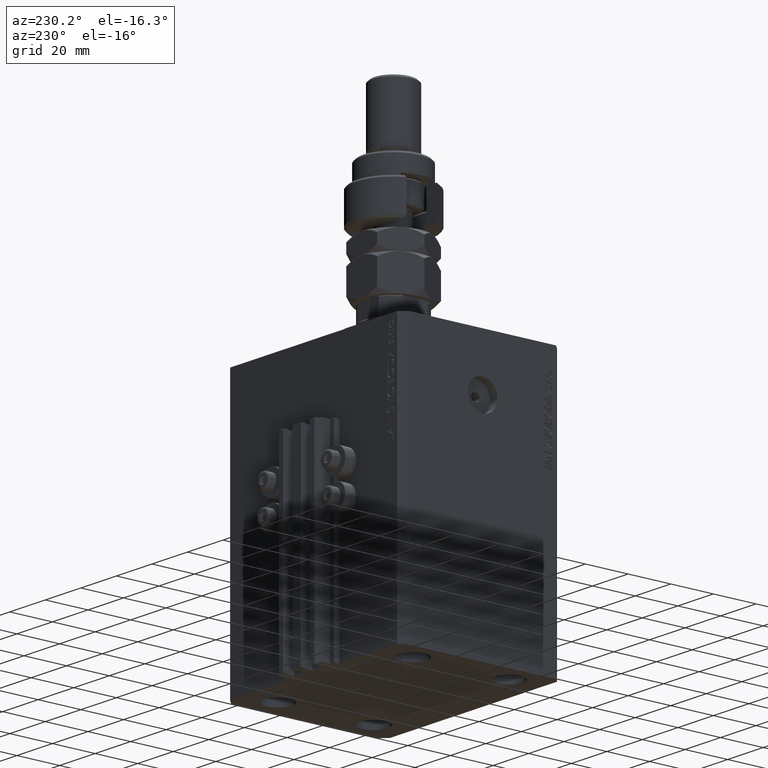
[diagram: clean part render]
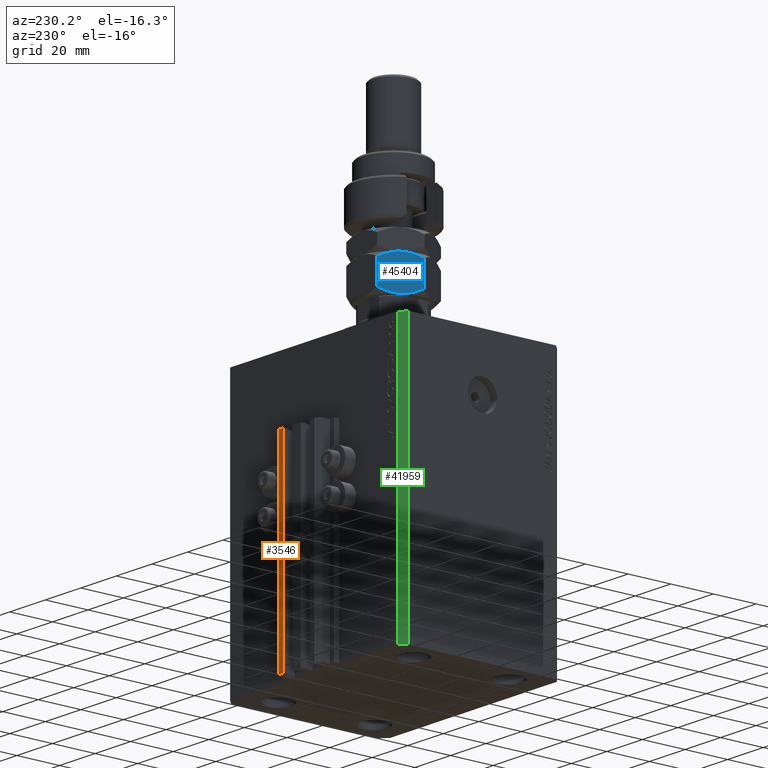
[diagram: same view with three faces highlighted in distinct colors, each labeled with its STEP entity id]
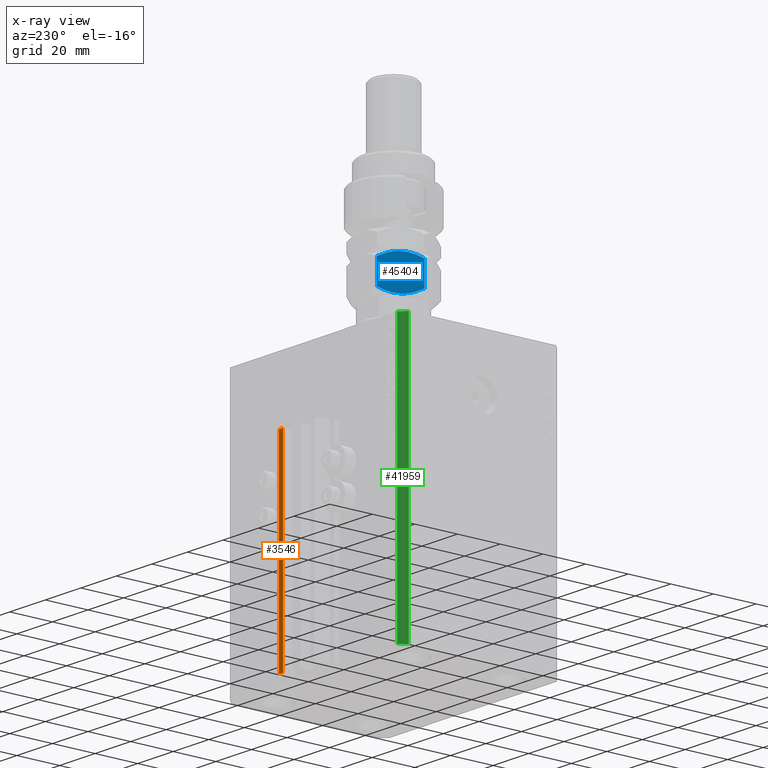
[diagram: x-ray of the same camera — body ghosted, the three highlighted faces saturated]
A machine part, auxiliary view with three faces highlighted in distinct colors.
The next image is the same camera in x-ray (body ghosted, the three faces saturated) — at least one of them is partly hidden behind the body in this view.
Their STEP definitions:

[orange] entity #3546 — the highlighted planar face has unit normal (0, 1, 0).
#199 = EDGE_CURVE ( 'NONE', #29269, #4705, #7111, .T. ) ;
#1094 = DIRECTION ( 'NONE',  ( -1.000000000000000000, 0.000000000000000000, 0.000000000000000000 ) ) ;
#2198 = EDGE_CURVE ( 'NONE', #33380, #13704, #33903, .T. ) ;
#3546 = ADVANCED_FACE ( 'NONE', ( #30025 ), #6178, .T. ) ;
#4067 = DIRECTION ( 'NONE',  ( 0.000000000000000000, 0.000000000000000000, 1.000000000000000000 ) ) ;
#4705 = VERTEX_POINT ( 'NONE', #12259 ) ;
#4977 = CARTESIAN_POINT ( 'NONE',  ( 7.649999999999998579, 45.50000000000002842, -125.0000000000000000 ) ) ;
#5063 = CARTESIAN_POINT ( 'NONE',  ( 9.999999999999998224, 45.50000000000002842, -125.0000000000000000 ) ) ;
#6178 = PLANE ( 'NONE',  #50019 ) ;
#7111 = LINE ( 'NONE', #11175, #33729 ) ;
#9171 = CARTESIAN_POINT ( 'NONE',  ( 9.999999999999998224, 45.50000000000002842, -33.00000000000000000 ) ) ;
#9740 = CARTESIAN_POINT ( 'NONE',  ( 9.999999999999998224, 45.50000000000002842, -125.0000000000000000 ) ) ;
#9843 = CARTESIAN_POINT ( 'NONE',  ( 9.999999999999998224, 45.50000000000002842, -125.0000000000000000 ) ) ;
#10346 = DIRECTION ( 'NONE',  ( 0.000000000000000000, 0.000000000000000000, 1.000000000000000000 ) ) ;
#11175 = CARTESIAN_POINT ( 'NONE',  ( 7.649999999999998579, 45.50000000000002842, -125.0000000000000000 ) ) ;
#12229 = LINE ( 'NONE', #9171, #47977 ) ;
#12259 = CARTESIAN_POINT ( 'NONE',  ( 7.649999999999998579, 45.50000000000002842, -33.00000000000000000 ) ) ;
#13704 = VERTEX_POINT ( 'NONE', #19947 ) ;
#19947 = CARTESIAN_POINT ( 'NONE',  ( 9.999999999999998224, 45.50000000000002842, -33.00000000000000000 ) ) ;
#23896 = EDGE_LOOP ( 'NONE', ( #40484, #36739, #34579, #31643 ) ) ;
#24831 = CARTESIAN_POINT ( 'NONE',  ( 9.999999999999998224, 45.50000000000002842, -125.0000000000000000 ) ) ;
#25212 = DIRECTION ( 'NONE',  ( 0.000000000000000000, 1.000000000000000000, -0.000000000000000000 ) ) ;
#26558 = VECTOR ( 'NONE', #10346, 1000.000000000000000 ) ;
#27113 = EDGE_CURVE ( 'NONE', #33380, #29269, #40008, .T. ) ;
#29269 = VERTEX_POINT ( 'NONE', #4977 ) ;
#30025 = FACE_OUTER_BOUND ( 'NONE', #23896, .T. ) ;
#30510 = DIRECTION ( 'NONE',  ( 0.000000000000000000, 0.000000000000000000, 1.000000000000000000 ) ) ;
#31643 = ORIENTED_EDGE ( 'NONE', *, *, #199, .T. ) ;
#33380 = VERTEX_POINT ( 'NONE', #24831 ) ;
#33729 = VECTOR ( 'NONE', #4067, 1000.000000000000000 ) ;
#33903 = LINE ( 'NONE', #9843, #26558 ) ;
#34579 = ORIENTED_EDGE ( 'NONE', *, *, #27113, .T. ) ;
#36739 = ORIENTED_EDGE ( 'NONE', *, *, #2198, .F. ) ;
#38556 = EDGE_CURVE ( 'NONE', #13704, #4705, #12229, .T. ) ;
#40008 = LINE ( 'NONE', #5063, #45940 ) ;
#40484 = ORIENTED_EDGE ( 'NONE', *, *, #38556, .F. ) ;
#45940 = VECTOR ( 'NONE', #47375, 1000.000000000000000 ) ;
#47375 = DIRECTION ( 'NONE',  ( -1.000000000000000000, 0.000000000000000000, 0.000000000000000000 ) ) ;
#47977 = VECTOR ( 'NONE', #1094, 1000.000000000000000 ) ;
#50019 = AXIS2_PLACEMENT_3D ( 'NONE', #9740, #25212, #30510 ) ;

[blue] entity #45404 — the highlighted planar face has unit normal (0.866, -0.5, 0).
#2 = EDGE_LOOP ( 'NONE', ( #35571, #49515, #39407, #36327, #27178, #3613 ) ) ;
#179 = B_SPLINE_CURVE_WITH_KNOTS ( 'NONE', 3,
 ( #21036, #40009, #1521, #12905, #5300, #32933, #20538, #36215, #28140, #48365, #13660, #16971 ),
 .UNSPECIFIED., .F., .F.,
 ( 4, 2, 2, 2, 2, 4 ),
 ( 0.03291042869972461704, 0.03403908204310903546, 0.03516773538649344694, 0.03742504207326227683, 0.03968234876003110673, 0.04193965544679993662 ),
 .UNSPECIFIED. ) ;
#347 = CARTESIAN_POINT ( 'NONE',  ( -14.99999999999999645, -3.004629197474316485E-15, 16.00000000000000000 ) ) ;
#1031 = CARTESIAN_POINT ( 'NONE',  ( -14.99999999999999467, -5.890999289811420958, 14.89758491968458820 ) ) ;
#1041 = EDGE_CURVE ( 'NONE', #3551, #41887, #15778, .T. ) ;
#1084 = CARTESIAN_POINT ( 'NONE',  ( -14.99999999999999645, -3.004629197474316485E-15, 16.00000000000000000 ) ) ;
#1159 = VERTEX_POINT ( 'NONE', #21293 ) ;
#1521 = CARTESIAN_POINT ( 'NONE',  ( -14.99999999999999822, 0.7629267201675393739, 0.01468466084192471960 ) ) ;
#1752 = CARTESIAN_POINT ( 'NONE',  ( -15.00000000000000000, 8.660254037844392627, 13.67949192431123429 ) ) ;
#1835 = CARTESIAN_POINT ( 'NONE',  ( -15.00000000000000000, 3.008020699068715054, 15.76423971609371222 ) ) ;
#3551 = VERTEX_POINT ( 'NONE', #347 ) ;
#3613 = ORIENTED_EDGE ( 'NONE', *, *, #22316, .F. ) ;
#4963 = LINE ( 'NONE', #28780, #23988 ) ;
#5124 = CARTESIAN_POINT ( 'NONE',  ( -15.00000000000000178, 7.301344312447437979, 14.32986304731390526 ) ) ;
#5300 = CARTESIAN_POINT ( 'NONE',  ( -15.00000000000000000, 1.890862710942016633, 0.1142538058331583339 ) ) ;
#5553 = CARTESIAN_POINT ( 'NONE',  ( -14.99999999999999645, -3.735400403320779272, 15.55737490054933936 ) ) ;
#6117 = CARTESIAN_POINT ( 'NONE',  ( -15.00000000000000000, 5.176035048062466615, 15.14719616142215308 ) ) ;
#6285 = AXIS2_PLACEMENT_3D ( 'NONE', #45383, #42310, #7604 ) ;
#7363 = FACE_OUTER_BOUND ( 'NONE', #2, .T. ) ;
#7604 = DIRECTION ( 'NONE',  ( -2.003086131649544964E-16, 1.000000000000000000, 0.000000000000000000 ) ) ;
#8380 = VERTEX_POINT ( 'NONE', #16132 ) ;
#8864 = CARTESIAN_POINT ( 'NONE',  ( -15.00000000000000000, -0.7629267201675442589, 15.98531533915807579 ) ) ;
#12905 = CARTESIAN_POINT ( 'NONE',  ( -15.00000000000000178, 1.516896874073655255, 0.07181722323989069012 ) ) ;
#13502 = EDGE_CURVE ( 'NONE', #29437, #8380, #25985, .T. ) ;
#13660 = CARTESIAN_POINT ( 'NONE',  ( -14.99999999999999645, 7.987879721624096874, 1.984320917578621835 ) ) ;
#15778 = B_SPLINE_CURVE_WITH_KNOTS ( 'NONE', 3,
 ( #47379, #40262, #8864, #39524, #48118, #17226, #5553, #47622, #1031, #31688, #20297, #43817 ),
 .UNSPECIFIED., .F., .F.,
 ( 4, 2, 2, 2, 2, 4 ),
 ( 0.03291042869972462398, 0.03403908204310903546, 0.03516773538649344694, 0.03742504207326226989, 0.03968234876003109979, 0.04193965544679992274 ),
 .UNSPECIFIED. ) ;
#16132 = CARTESIAN_POINT ( 'NONE',  ( -15.00000000000000000, -3.004629197474317274E-15, 0.000000000000000000 ) ) ;
#16170 = CARTESIAN_POINT ( 'NONE',  ( -15.00000000000000000, 8.660254037844392627, 16.00000000000000000 ) ) ;
#16971 = CARTESIAN_POINT ( 'NONE',  ( -15.00000000000000000, 8.660254037844394404, 2.320508075688769711 ) ) ;
#17226 = CARTESIAN_POINT ( 'NONE',  ( -14.99999999999999645, -3.004330627448763114, 15.71971113554880972 ) ) ;
#20297 = CARTESIAN_POINT ( 'NONE',  ( -14.99999999999999822, -7.987879721624087992, 14.01567908242139282 ) ) ;
#20538 = CARTESIAN_POINT ( 'NONE',  ( -15.00000000000000000, 3.735400403320778828, 0.4426250994506696901 ) ) ;
#21036 = CARTESIAN_POINT ( 'NONE',  ( -15.00000000000000000, -3.004629197474317274E-15, 0.000000000000000000 ) ) ;
#21293 = CARTESIAN_POINT ( 'NONE',  ( -15.00000000000000000, 8.660254037844394404, 2.320508075688769711 ) ) ;
#22007 = EDGE_CURVE ( 'NONE', #41174, #3551, #39458, .T. ) ;
#22018 = CARTESIAN_POINT ( 'NONE',  ( -14.99999999999999645, -7.987590979791842294, 1.984176546662486329 ) ) ;
#22316 = EDGE_CURVE ( 'NONE', #8380, #1159, #179, .T. ) ;
#22705 = CARTESIAN_POINT ( 'NONE',  ( -14.99999999999999645, -8.660254037844389075, 2.320508075688762606 ) ) ;
#22833 = PLANE ( 'NONE',  #6285 ) ;
#23725 = EDGE_CURVE ( 'NONE', #41174, #1159, #35422, .T. ) ;
#23988 = VECTOR ( 'NONE', #39911, 1000.000000000000000 ) ;
#24963 = EDGE_CURVE ( 'NONE', #41887, #29437, #4963, .T. ) ;
#25401 = CARTESIAN_POINT ( 'NONE',  ( -14.99999999999999822, 5.891877557735400117, 14.89726549906047381 ) ) ;
#25985 = B_SPLINE_CURVE_WITH_KNOTS ( 'NONE', 3,
 ( #49346, #22018, #33899, #48592, #37701, #36951, #33406, #37204 ),
 .UNSPECIFIED., .F., .F.,
 ( 4, 2, 2, 4 ),
 ( 0.02387628527307378290, 0.02613482112973649144, 0.02839335698639919997, 0.03291042869972461704 ),
 .UNSPECIFIED. ) ;
#27178 = ORIENTED_EDGE ( 'NONE', *, *, #23725, .T. ) ;
#28140 = CARTESIAN_POINT ( 'NONE',  ( -14.99999999999999822, 5.890999289811424511, 1.102415080315420015 ) ) ;
#28780 = CARTESIAN_POINT ( 'NONE',  ( -14.99999999999999645, -8.660254037844389075, 16.00000000000000000 ) ) ;
#29437 = VERTEX_POINT ( 'NONE', #22705 ) ;
#31688 = CARTESIAN_POINT ( 'NONE',  ( -14.99999999999999645, -7.300329060372325429, 14.33030584635917393 ) ) ;
#32933 = CARTESIAN_POINT ( 'NONE',  ( -15.00000000000000000, 3.004330627448767110, 0.2802888644511979388 ) ) ;
#32996 = CARTESIAN_POINT ( 'NONE',  ( -15.00000000000000000, 1.527574731641582639, 16.00000000000000711 ) ) ;
#33406 = CARTESIAN_POINT ( 'NONE',  ( -15.00000000000000355, -1.527574731641586192, -3.659182332138578254E-15 ) ) ;
#33899 = CARTESIAN_POINT ( 'NONE',  ( -14.99999999999999645, -7.301344312447434426, 1.670136952686098741 ) ) ;
#35422 = LINE ( 'NONE', #16170, #41768 ) ;
#35571 = ORIENTED_EDGE ( 'NONE', *, *, #13502, .F. ) ;
#36215 = CARTESIAN_POINT ( 'NONE',  ( -15.00000000000000000, 5.178726290334382476, 0.8537269996444443176 ) ) ;
#36327 = ORIENTED_EDGE ( 'NONE', *, *, #22007, .F. ) ;
#36537 = CARTESIAN_POINT ( 'NONE',  ( -15.00000000000000000, 7.987590979791845847, 14.01582345333751789 ) ) ;
#36951 = CARTESIAN_POINT ( 'NONE',  ( -14.99999999999999645, -3.008020699068712389, 0.2357602839062925004 ) ) ;
#37204 = CARTESIAN_POINT ( 'NONE',  ( -15.00000000000000000, -3.004629197474317274E-15, 0.000000000000000000 ) ) ;
#37701 = CARTESIAN_POINT ( 'NONE',  ( -14.99999999999999467, -5.176035048062463062, 0.8528038385778453634 ) ) ;
#37774 = CARTESIAN_POINT ( 'NONE',  ( -14.99999999999999645, -8.660254037844389075, 13.67949192431124139 ) ) ;
#39407 = ORIENTED_EDGE ( 'NONE', *, *, #1041, .F. ) ;
#39458 = B_SPLINE_CURVE_WITH_KNOTS ( 'NONE', 3,
 ( #47673, #36537, #5124, #25401, #6117, #1835, #32996, #1084 ),
 .UNSPECIFIED., .F., .F.,
 ( 4, 2, 2, 4 ),
 ( 0.02387628527307378290, 0.02613482112973649490, 0.02839335698639920344, 0.03291042869972462398 ),
 .UNSPECIFIED. ) ;
#39524 = CARTESIAN_POINT ( 'NONE',  ( -14.99999999999999822, -1.516896874073658807, 15.92818277676011007 ) ) ;
#39911 = DIRECTION ( 'NONE',  ( -0.000000000000000000, -0.000000000000000000, -1.000000000000000000 ) ) ;
#40009 = CARTESIAN_POINT ( 'NONE',  ( -14.99999999999999822, 0.3816858437404692661, -3.491469808582225998E-15 ) ) ;
#40262 = CARTESIAN_POINT ( 'NONE',  ( -15.00000000000000178, -0.3816858437404726523, 16.00000000000001066 ) ) ;
#41174 = VERTEX_POINT ( 'NONE', #1752 ) ;
#41768 = VECTOR ( 'NONE', #47327, 1000.000000000000000 ) ;
#41887 = VERTEX_POINT ( 'NONE', #37774 ) ;
#42310 = DIRECTION ( 'NONE',  ( 1.000000000000000000, 2.003086131649544964E-16, -0.000000000000000000 ) ) ;
#43817 = CARTESIAN_POINT ( 'NONE',  ( -14.99999999999999645, -8.660254037844389075, 13.67949192431124139 ) ) ;
#45383 = CARTESIAN_POINT ( 'NONE',  ( -15.00000000000000000, 8.660254037844392627, 16.00000000000000000 ) ) ;
#45404 = ADVANCED_FACE ( 'NONE', ( #7363 ), #22833, .F. ) ;
#47327 = DIRECTION ( 'NONE',  ( -0.000000000000000000, -0.000000000000000000, -1.000000000000000000 ) ) ;
#47379 = CARTESIAN_POINT ( 'NONE',  ( -14.99999999999999645, -3.004629197474316485E-15, 16.00000000000000000 ) ) ;
#47622 = CARTESIAN_POINT ( 'NONE',  ( -14.99999999999999822, -5.178726290334378035, 15.14627300035556345 ) ) ;
#47673 = CARTESIAN_POINT ( 'NONE',  ( -15.00000000000000000, 8.660254037844392627, 13.67949192431123429 ) ) ;
#48118 = CARTESIAN_POINT ( 'NONE',  ( -14.99999999999999822, -1.890862710942014857, 15.88574619416684541 ) ) ;
#48365 = CARTESIAN_POINT ( 'NONE',  ( -14.99999999999999822, 7.300329060372334311, 1.669694153640834955 ) ) ;
#48592 = CARTESIAN_POINT ( 'NONE',  ( -14.99999999999999112, -5.891877557735397453, 1.102734500939527518 ) ) ;
#49346 = CARTESIAN_POINT ( 'NONE',  ( -14.99999999999999645, -8.660254037844389075, 2.320508075688762606 ) ) ;
#49515 = ORIENTED_EDGE ( 'NONE', *, *, #24963, .F. ) ;

[green] entity #41959 — the highlighted planar face has unit normal (-0.7071, 0.7071, 0).
#1329 = DIRECTION ( 'NONE',  ( 0.000000000000000000, 0.000000000000000000, 1.000000000000000000 ) ) ;
#1987 = EDGE_CURVE ( 'NONE', #47694, #2439, #45873, .T. ) ;
#2273 = VECTOR ( 'NONE', #18272, 1000.000000000000000 ) ;
#2439 = VERTEX_POINT ( 'NONE', #2949 ) ;
#2949 = CARTESIAN_POINT ( 'NONE',  ( -50.00000000000001421, 34.50000000000000000, 0.000000000000000000 ) ) ;
#7842 = DIRECTION ( 'NONE',  ( -0.7071067811865483499, -0.7071067811865466846, 0.000000000000000000 ) ) ;
#8174 = CARTESIAN_POINT ( 'NONE',  ( -50.00000000000001421, 34.50000000000000000, -125.0000000000000000 ) ) ;
#8847 = DIRECTION ( 'NONE',  ( -0.7071067811865466846, 0.7071067811865483499, 0.000000000000000000 ) ) ;
#10052 = CARTESIAN_POINT ( 'NONE',  ( -47.00000000000001421, 37.50000000000000000, 0.000000000000000000 ) ) ;
#12397 = CARTESIAN_POINT ( 'NONE',  ( -47.00000000000001421, 37.50000000000000000, -125.0000000000000000 ) ) ;
#12474 = LINE ( 'NONE', #8174, #35657 ) ;
#12648 = CARTESIAN_POINT ( 'NONE',  ( -47.00000000000001421, 37.50000000000000000, -125.0000000000000000 ) ) ;
#15501 = ORIENTED_EDGE ( 'NONE', *, *, #46221, .F. ) ;
#16172 = VERTEX_POINT ( 'NONE', #17279 ) ;
#16759 = DIRECTION ( 'NONE',  ( 0.000000000000000000, 0.000000000000000000, 1.000000000000000000 ) ) ;
#17000 = AXIS2_PLACEMENT_3D ( 'NONE', #12397, #8847, #7842 ) ;
#17279 = CARTESIAN_POINT ( 'NONE',  ( -47.00000000000001421, 37.50000000000000000, -125.0000000000000000 ) ) ;
#17518 = CARTESIAN_POINT ( 'NONE',  ( -47.00000000000001421, 37.50000000000000000, -125.0000000000000000 ) ) ;
#18060 = EDGE_LOOP ( 'NONE', ( #44874, #15501, #28458, #25407 ) ) ;
#18272 = DIRECTION ( 'NONE',  ( -0.7071067811865483499, -0.7071067811865466846, 0.000000000000000000 ) ) ;
#18509 = VECTOR ( 'NONE', #25335, 1000.000000000000000 ) ;
#24623 = LINE ( 'NONE', #17518, #44295 ) ;
#25335 = DIRECTION ( 'NONE',  ( -0.7071067811865483499, -0.7071067811865466846, 0.000000000000000000 ) ) ;
#25407 = ORIENTED_EDGE ( 'NONE', *, *, #32892, .T. ) ;
#27640 = PLANE ( 'NONE',  #17000 ) ;
#28458 = ORIENTED_EDGE ( 'NONE', *, *, #47384, .T. ) ;
#30933 = FACE_OUTER_BOUND ( 'NONE', #18060, .T. ) ;
#32892 = EDGE_CURVE ( 'NONE', #34408, #2439, #12474, .T. ) ;
#33751 = CARTESIAN_POINT ( 'NONE',  ( -50.00000000000001421, 34.50000000000000000, -125.0000000000000000 ) ) ;
#34408 = VERTEX_POINT ( 'NONE', #33751 ) ;
#35657 = VECTOR ( 'NONE', #1329, 1000.000000000000000 ) ;
#40254 = LINE ( 'NONE', #12648, #18509 ) ;
#41959 = ADVANCED_FACE ( 'NONE', ( #30933 ), #27640, .T. ) ;
#44295 = VECTOR ( 'NONE', #16759, 1000.000000000000000 ) ;
#44874 = ORIENTED_EDGE ( 'NONE', *, *, #1987, .F. ) ;
#45873 = LINE ( 'NONE', #48660, #2273 ) ;
#46221 = EDGE_CURVE ( 'NONE', #16172, #47694, #24623, .T. ) ;
#47384 = EDGE_CURVE ( 'NONE', #16172, #34408, #40254, .T. ) ;
#47694 = VERTEX_POINT ( 'NONE', #10052 ) ;
#48660 = CARTESIAN_POINT ( 'NONE',  ( -47.00000000000001421, 37.50000000000000000, 0.000000000000000000 ) ) ;